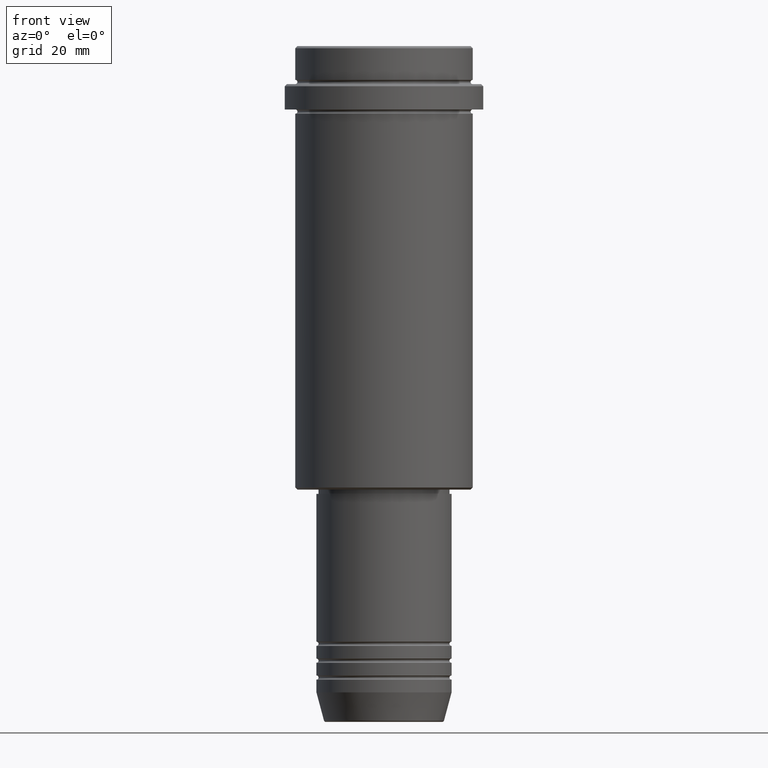
[diagram: clean part render]
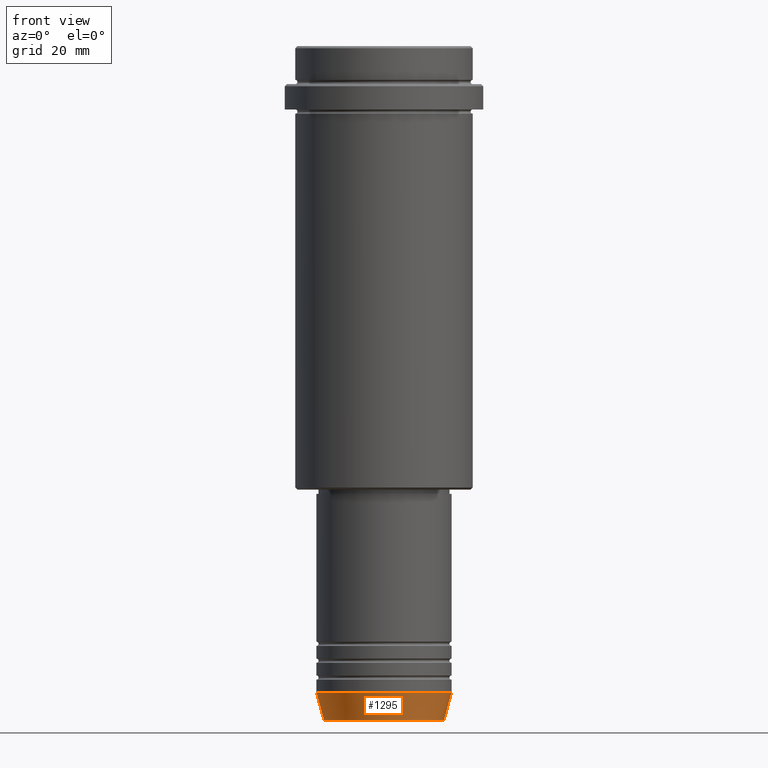
[diagram: same view with one face highlighted and labeled with its STEP entity id]
A machine part, front view. The second image highlights one B-rep face of the part: STEP entity #1295.
In plain terms, the highlighted conical surface has half-angle 15 deg.
Its self-contained STEP definition (entity closure, byte-faithful):
#19 = VERTEX_POINT ( 'NONE', #579 ) ;
#58 = LINE ( 'NONE', #1141, #1244 ) ;
#111 = DIRECTION ( 'NONE',  ( 1.000000000000000000, 0.000000000000000000, 0.000000000000000000 ) ) ;
#148 = ORIENTED_EDGE ( 'NONE', *, *, #1294, .F. ) ;
#159 = FACE_OUTER_BOUND ( 'NONE', #588, .T. ) ;
#165 = DIRECTION ( 'NONE',  ( -0.000000000000000000, -0.000000000000000000, 1.000000000000000000 ) ) ;
#177 = ORIENTED_EDGE ( 'NONE', *, *, #1091, .T. ) ;
#200 = DIRECTION ( 'NONE',  ( 1.000000000000000000, 0.000000000000000000, 0.000000000000000000 ) ) ;
#204 = DIRECTION ( 'NONE',  ( -0.000000000000000000, -0.000000000000000000, 1.000000000000000000 ) ) ;
#326 = CARTESIAN_POINT ( 'NONE',  ( 0.000000000000000000, 0.000000000000000000, -159.6294095225512422 ) ) ;
#358 = CARTESIAN_POINT ( 'NONE',  ( -16.00000000000000000, 1.959434878635765131E-15, -153.0000000000000000 ) ) ;
#372 = AXIS2_PLACEMENT_3D ( 'NONE', #1163, #165, #933 ) ;
#417 = CARTESIAN_POINT ( 'NONE',  ( 16.00000000000000000, 0.000000000000000000, -153.0000000000000000 ) ) ;
#495 = DIRECTION ( 'NONE',  ( -0.2588190451025213501, 3.169619151431772337E-17, 0.9659258262890680902 ) ) ;
#579 = CARTESIAN_POINT ( 'NONE',  ( 14.22365507213718772, 0.000000000000000000, -159.6294095225512422 ) ) ;
#588 = EDGE_LOOP ( 'NONE', ( #148, #177, #1373, #1090 ) ) ;
#642 = CIRCLE ( 'NONE', #1181, 16.00000000000000000 ) ;
#661 = VERTEX_POINT ( 'NONE', #358 ) ;
#671 = VERTEX_POINT ( 'NONE', #769 ) ;
#769 = CARTESIAN_POINT ( 'NONE',  ( 16.00000000000000000, 0.000000000000000000, -153.0000000000000000 ) ) ;
#863 = VECTOR ( 'NONE', #1206, 1000.000000000000000 ) ;
#933 = DIRECTION ( 'NONE',  ( 1.000000000000000000, 0.000000000000000000, 0.000000000000000000 ) ) ;
#979 = DIRECTION ( 'NONE',  ( -0.000000000000000000, -0.000000000000000000, 1.000000000000000000 ) ) ;
#1001 = EDGE_CURVE ( 'NONE', #19, #671, #1416, .T. ) ;
#1013 = EDGE_CURVE ( 'NONE', #661, #671, #642, .T. ) ;
#1020 = CIRCLE ( 'NONE', #1404, 14.22365507213718772 ) ;
#1085 = CARTESIAN_POINT ( 'NONE',  ( 0.000000000000000000, 0.000000000000000000, -153.0000000000000000 ) ) ;
#1090 = ORIENTED_EDGE ( 'NONE', *, *, #1013, .F. ) ;
#1091 = EDGE_CURVE ( 'NONE', #1257, #19, #1020, .T. ) ;
#1105 = CONICAL_SURFACE ( 'NONE', #372, 16.00000000000000000, 0.2617993877991500740 ) ;
#1141 = CARTESIAN_POINT ( 'NONE',  ( -16.00000000000000000, 1.959434878635765131E-15, -153.0000000000000000 ) ) ;
#1163 = CARTESIAN_POINT ( 'NONE',  ( 0.000000000000000000, 0.000000000000000000, -153.0000000000000000 ) ) ;
#1181 = AXIS2_PLACEMENT_3D ( 'NONE', #1085, #204, #111 ) ;
#1206 = DIRECTION ( 'NONE',  ( 0.2588190451025213501, 0.000000000000000000, 0.9659258262890680902 ) ) ;
#1232 = CARTESIAN_POINT ( 'NONE',  ( -14.22365507213718772, 1.850665122131323337E-15, -159.6294095225512422 ) ) ;
#1244 = VECTOR ( 'NONE', #495, 1000.000000000000000 ) ;
#1257 = VERTEX_POINT ( 'NONE', #1232 ) ;
#1294 = EDGE_CURVE ( 'NONE', #1257, #661, #58, .T. ) ;
#1295 = ADVANCED_FACE ( 'NONE', ( #159 ), #1105, .T. ) ;
#1373 = ORIENTED_EDGE ( 'NONE', *, *, #1001, .T. ) ;
#1404 = AXIS2_PLACEMENT_3D ( 'NONE', #326, #979, #200 ) ;
#1416 = LINE ( 'NONE', #417, #863 ) ;